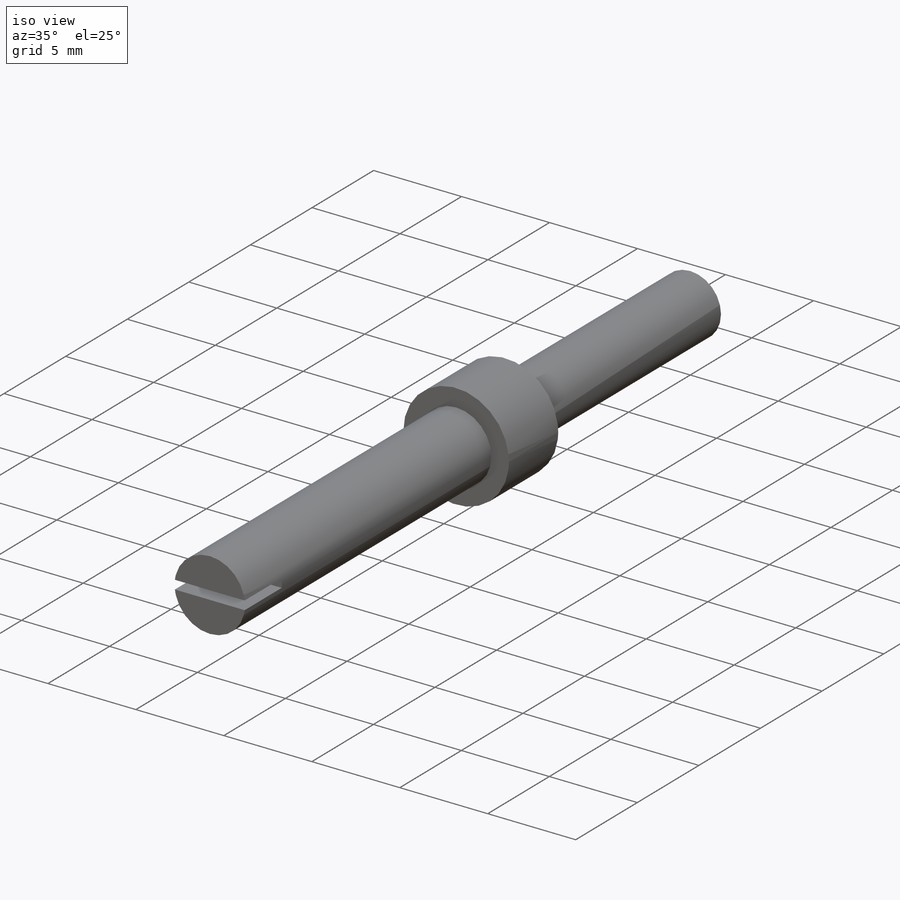
[diagram: iso view]
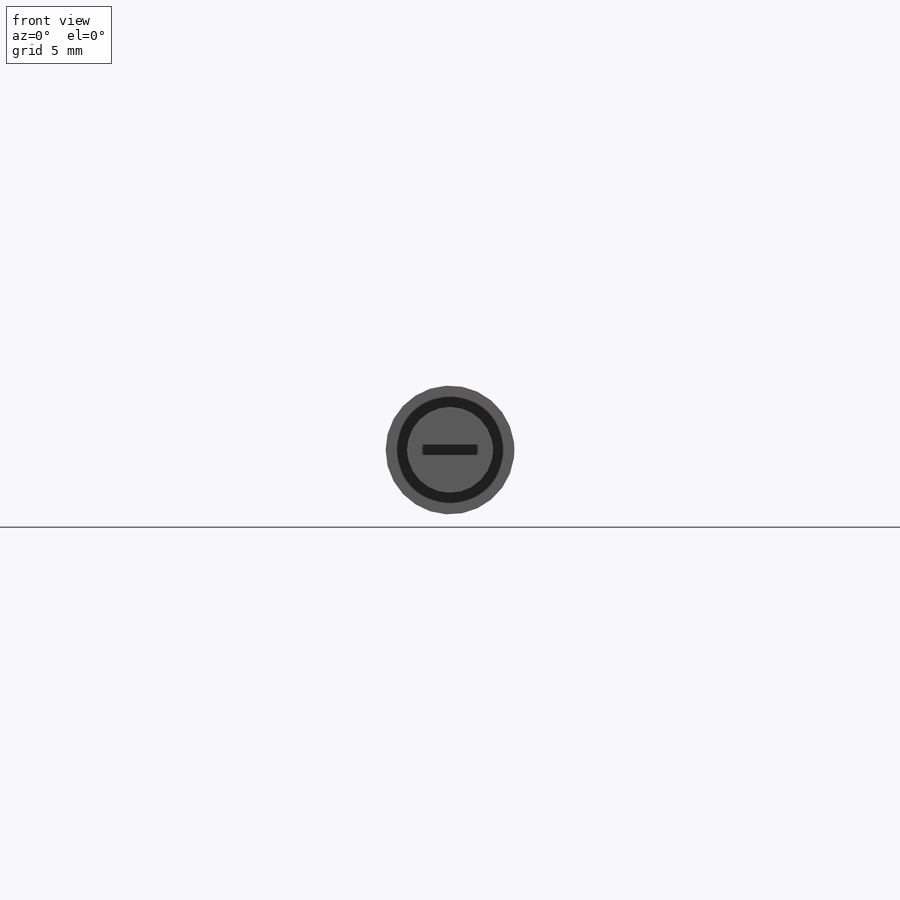
[diagram: front view]
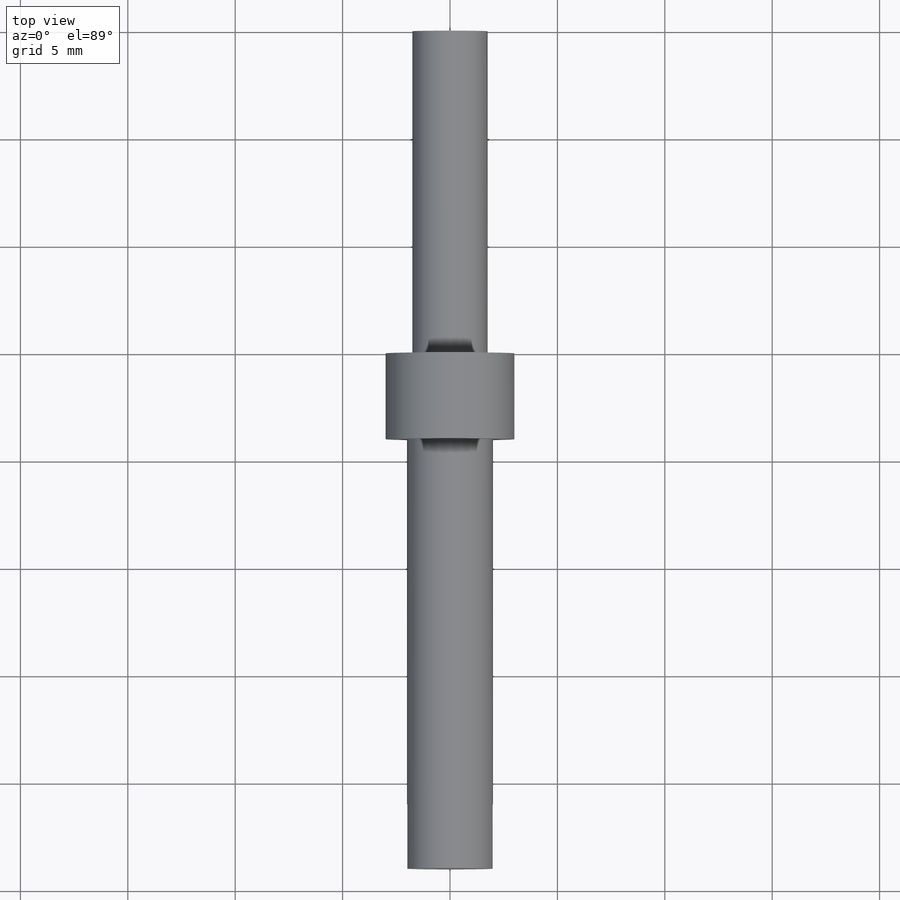
[diagram: top view]
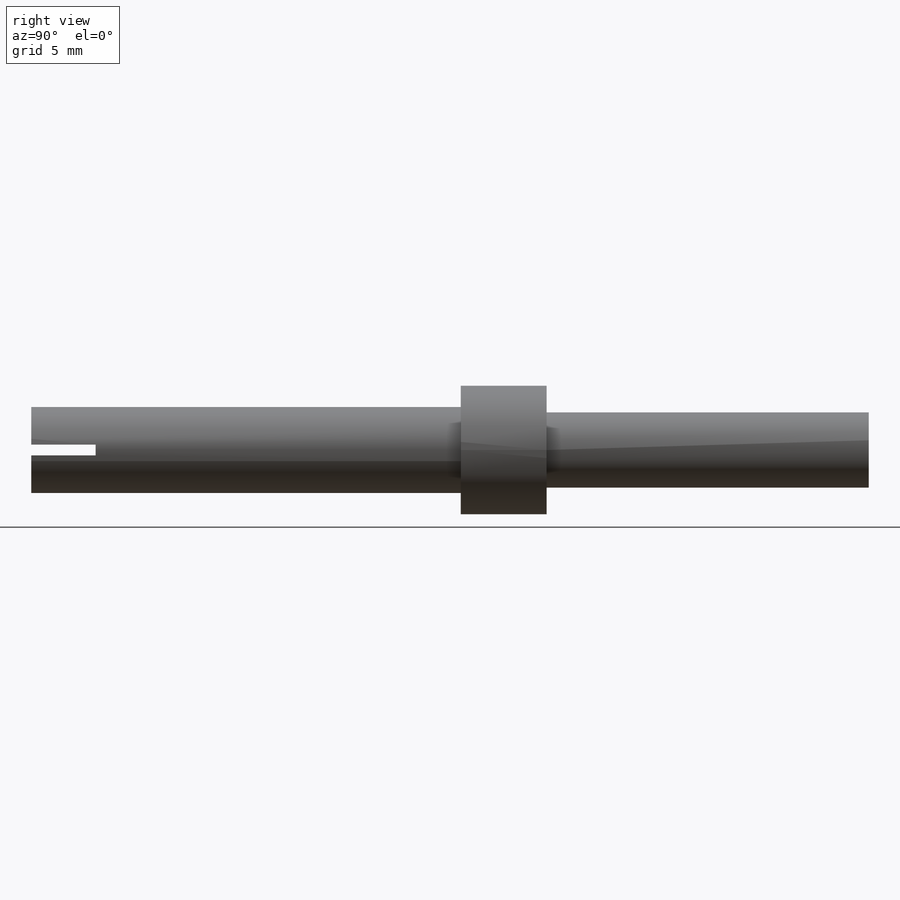
[diagram: right view]
SOLIDWORKS PART (.sldprt)
format: sldprt  version: not decoded by parser v0  size: 151,552 bytes
history: native  units: mm
features: sketch x4, extrude x3, material x1, cut_extrude x1 (+12 scaffold rows collapsed)
feature tree (21):
  scaffold x12  (default folders/planes/origin — collapsed)
  material  "재질 <지정안함>"
  sketch  "스케치1"  dims[D1=~7.196158mm]
  extrude  "보스-돌출1"  Depth=4mm
  sketch  "스케치2"  dims[D1=~0.68372mm]
  extrude  "보스-돌출2"  Depth=20mm
  sketch  "스케치3"  dims[D1=~1.130987mm]
  extrude  "보스-돌출3"  Depth=15mm
  sketch  "스케치4"  dims[D1=0.5mm D2=0.25mm]
  cut_extrude  "컷-돌출1"  Depth=3mm
decode coverage: 8 of 8 modeling features carry decoded parameters
note: ~ marks probable driven/reference dimensions
note: suppression state not decoded; provenance and decode notes live in map.json
